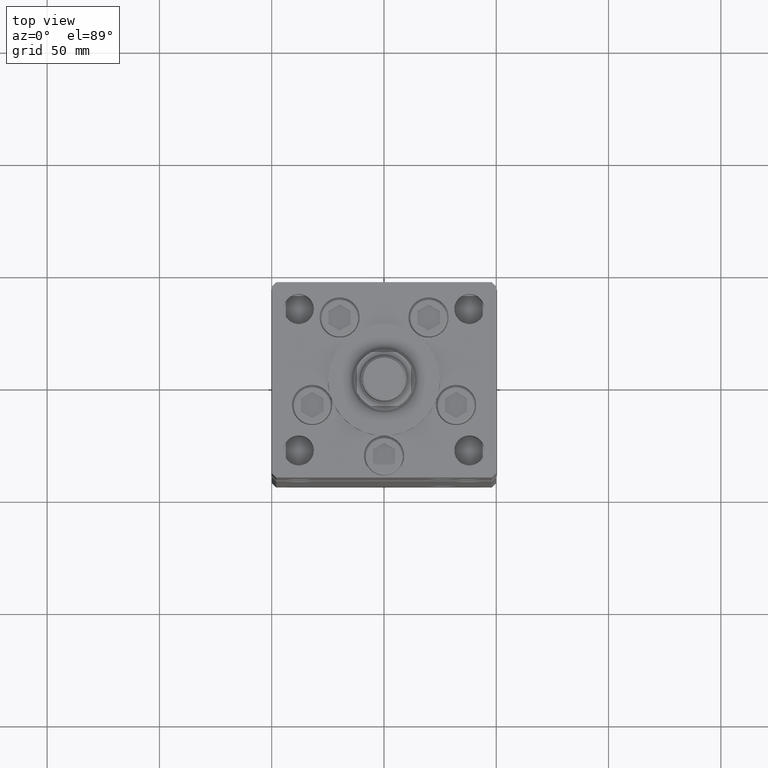
[diagram: clean part render]
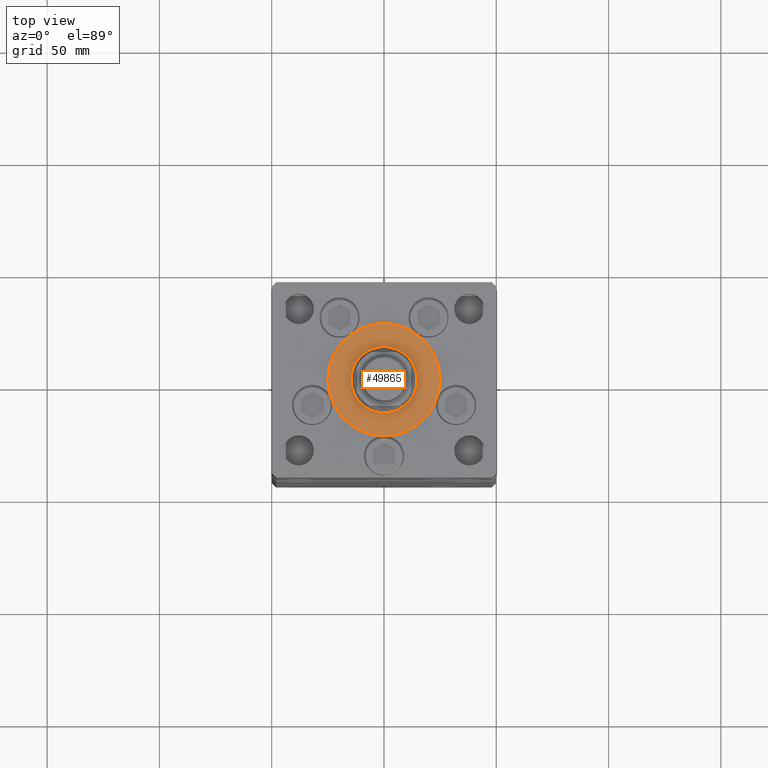
[diagram: same view with one face highlighted and labeled with its STEP entity id]
A machine part, top view. The second image highlights one B-rep face of the part: STEP entity #49865.
In plain terms, the highlighted planar face has unit normal (0, 0, 1).
Its self-contained STEP definition (entity closure, byte-faithful):
#427 = CIRCLE ( 'NONE', #47188, 25.00000000000000000 ) ;
#694 = ORIENTED_EDGE ( 'NONE', *, *, #4738, .F. ) ;
#2966 = AXIS2_PLACEMENT_3D ( 'NONE', #21429, #50421, #37672 ) ;
#4025 = ORIENTED_EDGE ( 'NONE', *, *, #11725, .T. ) ;
#4529 = CARTESIAN_POINT ( 'NONE',  ( 0.000000000000000000, -6.938893903907228378E-15, 2.000000000000000000 ) ) ;
#4738 = EDGE_CURVE ( 'NONE', #35258, #5342, #51469, .T. ) ;
#4782 = AXIS2_PLACEMENT_3D ( 'NONE', #4529, #21056, #8335 ) ;
#4904 = PLANE ( 'NONE',  #2966 ) ;
#5342 = VERTEX_POINT ( 'NONE', #20186 ) ;
#5782 = DIRECTION ( 'NONE',  ( 1.000000000000000000, 0.000000000000000000, 0.000000000000000000 ) ) ;
#8335 = DIRECTION ( 'NONE',  ( 1.000000000000000000, 0.000000000000000000, 0.000000000000000000 ) ) ;
#9099 = EDGE_LOOP ( 'NONE', ( #4025, #27926 ) ) ;
#10774 = AXIS2_PLACEMENT_3D ( 'NONE', #35301, #18243, #5782 ) ;
#11725 = EDGE_CURVE ( 'NONE', #31206, #21223, #427, .T. ) ;
#14257 = CIRCLE ( 'NONE', #28052, 14.75000000000000178 ) ;
#16448 = DIRECTION ( 'NONE',  ( 0.000000000000000000, 0.000000000000000000, 1.000000000000000000 ) ) ;
#17330 = ORIENTED_EDGE ( 'NONE', *, *, #51084, .F. ) ;
#17891 = FACE_OUTER_BOUND ( 'NONE', #9099, .T. ) ;
#18243 = DIRECTION ( 'NONE',  ( 0.000000000000000000, 0.000000000000000000, 1.000000000000000000 ) ) ;
#19953 = EDGE_LOOP ( 'NONE', ( #17330, #694 ) ) ;
#20186 = CARTESIAN_POINT ( 'NONE',  ( 14.75000000000000178, -6.938893903907228378E-15, 2.000000000000000000 ) ) ;
#21056 = DIRECTION ( 'NONE',  ( 0.000000000000000000, 0.000000000000000000, 1.000000000000000000 ) ) ;
#21223 = VERTEX_POINT ( 'NONE', #25448 ) ;
#21270 = DIRECTION ( 'NONE',  ( 1.000000000000000000, 0.000000000000000000, 0.000000000000000000 ) ) ;
#21429 = CARTESIAN_POINT ( 'NONE',  ( 0.000000000000000000, -6.938893903907228378E-15, 2.000000000000000000 ) ) ;
#22052 = CIRCLE ( 'NONE', #4782, 25.00000000000000000 ) ;
#25448 = CARTESIAN_POINT ( 'NONE',  ( 25.00000000000000000, -3.877276906038844941E-15, 2.000000000000000000 ) ) ;
#26231 = CARTESIAN_POINT ( 'NONE',  ( -14.75000000000000178, -5.132539875164881787E-15, 2.000000000000000000 ) ) ;
#27926 = ORIENTED_EDGE ( 'NONE', *, *, #52308, .T. ) ;
#28052 = AXIS2_PLACEMENT_3D ( 'NONE', #40821, #16448, #36234 ) ;
#29132 = DIRECTION ( 'NONE',  ( 0.000000000000000000, 0.000000000000000000, 1.000000000000000000 ) ) ;
#31206 = VERTEX_POINT ( 'NONE', #31828 ) ;
#31828 = CARTESIAN_POINT ( 'NONE',  ( -25.00000000000000000, -6.938893903907228378E-15, 2.000000000000000000 ) ) ;
#35258 = VERTEX_POINT ( 'NONE', #26231 ) ;
#35301 = CARTESIAN_POINT ( 'NONE',  ( 0.000000000000000000, -6.938893903907228378E-15, 2.000000000000000000 ) ) ;
#36234 = DIRECTION ( 'NONE',  ( 1.000000000000000000, 0.000000000000000000, 0.000000000000000000 ) ) ;
#37672 = DIRECTION ( 'NONE',  ( 1.000000000000000000, 0.000000000000000000, -0.000000000000000000 ) ) ;
#38578 = CARTESIAN_POINT ( 'NONE',  ( 0.000000000000000000, -6.938893903907228378E-15, 2.000000000000000000 ) ) ;
#40821 = CARTESIAN_POINT ( 'NONE',  ( 0.000000000000000000, -6.938893903907228378E-15, 2.000000000000000000 ) ) ;
#47143 = FACE_BOUND ( 'NONE', #19953, .T. ) ;
#47188 = AXIS2_PLACEMENT_3D ( 'NONE', #38578, #29132, #21270 ) ;
#49865 = ADVANCED_FACE ( 'NONE', ( #47143, #17891 ), #4904, .T. ) ;
#50421 = DIRECTION ( 'NONE',  ( 0.000000000000000000, 0.000000000000000000, 1.000000000000000000 ) ) ;
#51084 = EDGE_CURVE ( 'NONE', #5342, #35258, #14257, .T. ) ;
#51469 = CIRCLE ( 'NONE', #10774, 14.75000000000000178 ) ;
#52308 = EDGE_CURVE ( 'NONE', #21223, #31206, #22052, .T. ) ;